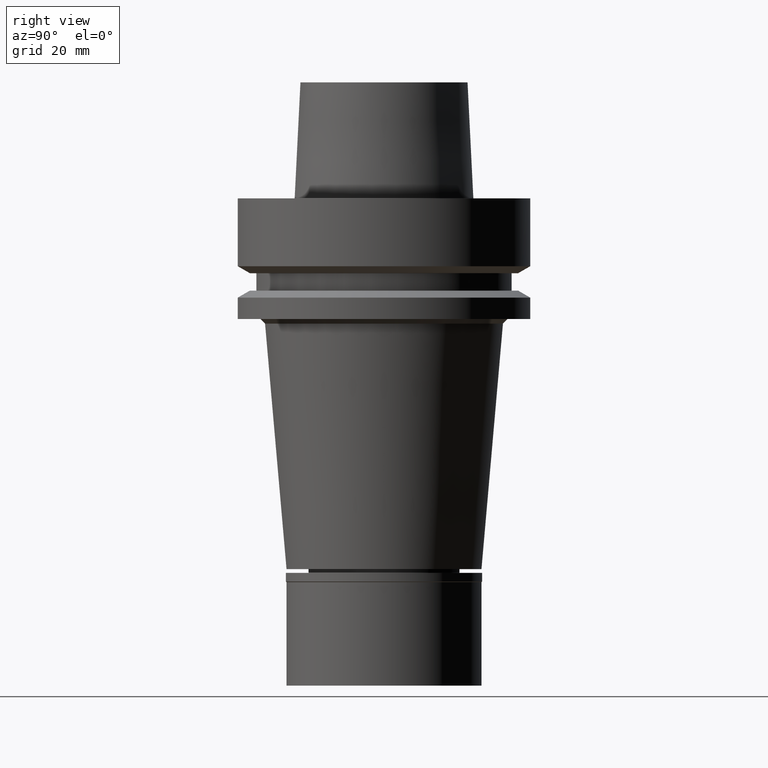
[diagram: clean part render]
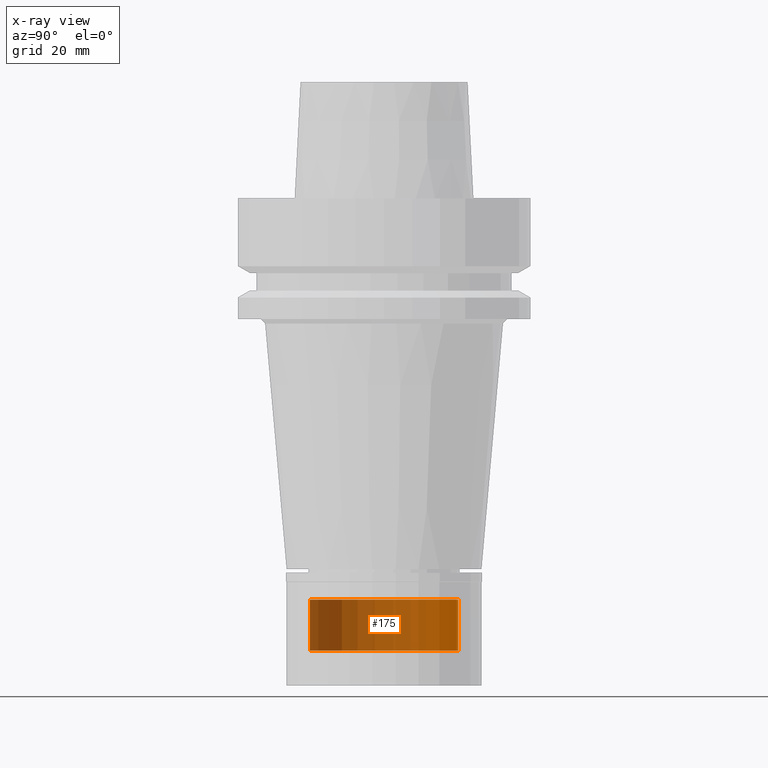
[diagram: x-ray — body ghosted, one internal face saturated and labeled with its STEP entity id]
A machine part, right view, then the same camera in x-ray: the body is ghosted and one INTERNAL B-rep face — a face not visible from any outside direction — is saturated and labeled: STEP entity #175.
In plain terms, the highlighted cylindrical surface (partial cylindrical patch) has radius 16 mm, axis along (0, 0, 1).
Its self-contained STEP definition (entity closure, byte-faithful):
#74 = ORIENTED_EDGE ( 'NONE', *, *, #1076, .T. ) ;
#122 = CARTESIAN_POINT ( 'NONE',  ( 0.0000000000000000000, -16.00000000000000000, -97.50000000000000000 ) ) ;
#175 = ADVANCED_FACE ( 'NONE', ( #2312 ), #2270, .T. ) ;
#215 = DIRECTION ( 'NONE',  ( 0.0000000000000000000, 0.0000000000000000000, -1.000000000000000000 ) ) ;
#228 = DIRECTION ( 'NONE',  ( 0.0000000000000000000, 1.000000000000000000, 0.0000000000000000000 ) ) ;
#233 = CARTESIAN_POINT ( 'NONE',  ( 0.0000000000000000000, 16.00000000000000000, -97.50000000000000000 ) ) ;
#280 = EDGE_LOOP ( 'NONE', ( #2472, #1507, #830, #74 ) ) ;
#509 = DIRECTION ( 'NONE',  ( 0.0000000000000000000, 0.0000000000000000000, -1.000000000000000000 ) ) ;
#661 = CIRCLE ( 'NONE', #2372, 16.00000000000000000 ) ;
#673 = DIRECTION ( 'NONE',  ( 0.0000000000000000000, 0.0000000000000000000, 1.000000000000000000 ) ) ;
#830 = ORIENTED_EDGE ( 'NONE', *, *, #2227, .T. ) ;
#841 = CARTESIAN_POINT ( 'NONE',  ( 0.0000000000000000000, -16.00000000000000000, -86.50000000000000000 ) ) ;
#880 = CARTESIAN_POINT ( 'NONE',  ( 0.0000000000000000000, -16.00000000000000000, -86.50000000000000000 ) ) ;
#886 = EDGE_CURVE ( 'NONE', #2209, #2307, #661, .T. ) ;
#918 = DIRECTION ( 'NONE',  ( 0.0000000000000000000, 0.0000000000000000000, -1.000000000000000000 ) ) ;
#1076 = EDGE_CURVE ( 'NONE', #2118, #2209, #1142, .T. ) ;
#1089 = LINE ( 'NONE', #841, #2424 ) ;
#1142 = LINE ( 'NONE', #2020, #2145 ) ;
#1334 = EDGE_CURVE ( 'NONE', #2657, #2307, #1089, .T. ) ;
#1344 = DIRECTION ( 'NONE',  ( 0.0000000000000000000, 0.0000000000000000000, 1.000000000000000000 ) ) ;
#1413 = DIRECTION ( 'NONE',  ( 0.0000000000000000000, -1.000000000000000000, 0.0000000000000000000 ) ) ;
#1507 = ORIENTED_EDGE ( 'NONE', *, *, #1334, .F. ) ;
#1514 = CIRCLE ( 'NONE', #2240, 16.00000000000000000 ) ;
#1813 = CARTESIAN_POINT ( 'NONE',  ( 0.0000000000000000000, 16.00000000000000000, -86.50000000000000000 ) ) ;
#2020 = CARTESIAN_POINT ( 'NONE',  ( 0.0000000000000000000, 16.00000000000000000, -86.50000000000000000 ) ) ;
#2118 = VERTEX_POINT ( 'NONE', #1813 ) ;
#2145 = VECTOR ( 'NONE', #918, 1000.000000000000000 ) ;
#2194 = CARTESIAN_POINT ( 'NONE',  ( 0.0000000000000000000, 0.0000000000000000000, -97.50000000000000000 ) ) ;
#2209 = VERTEX_POINT ( 'NONE', #233 ) ;
#2227 = EDGE_CURVE ( 'NONE', #2657, #2118, #1514, .T. ) ;
#2240 = AXIS2_PLACEMENT_3D ( 'NONE', #2488, #509, #1413 ) ;
#2247 = CARTESIAN_POINT ( 'NONE',  ( 0.0000000000000000000, 0.0000000000000000000, -103.6250000000000000 ) ) ;
#2270 = CYLINDRICAL_SURFACE ( 'NONE', #2412, 16.00000000000000000 ) ;
#2307 = VERTEX_POINT ( 'NONE', #122 ) ;
#2312 = FACE_OUTER_BOUND ( 'NONE', #280, .T. ) ;
#2372 = AXIS2_PLACEMENT_3D ( 'NONE', #2194, #1344, #228 ) ;
#2412 = AXIS2_PLACEMENT_3D ( 'NONE', #2247, #673, #2442 ) ;
#2424 = VECTOR ( 'NONE', #215, 1000.000000000000000 ) ;
#2442 = DIRECTION ( 'NONE',  ( 0.0000000000000000000, 1.000000000000000000, 0.0000000000000000000 ) ) ;
#2472 = ORIENTED_EDGE ( 'NONE', *, *, #886, .T. ) ;
#2488 = CARTESIAN_POINT ( 'NONE',  ( 0.0000000000000000000, 0.0000000000000000000, -86.50000000000000000 ) ) ;
#2657 = VERTEX_POINT ( 'NONE', #880 ) ;